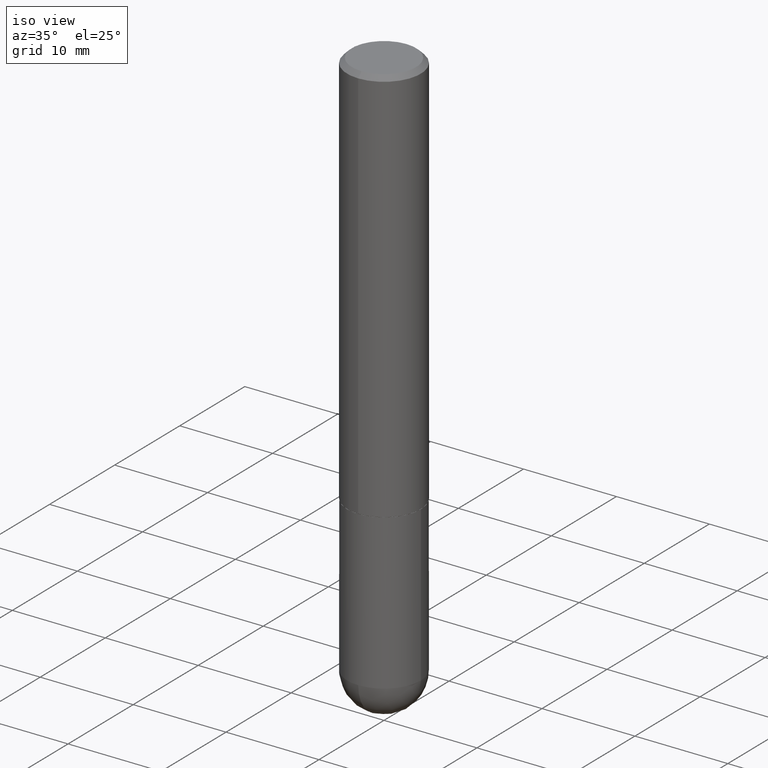
[diagram: clean part render]
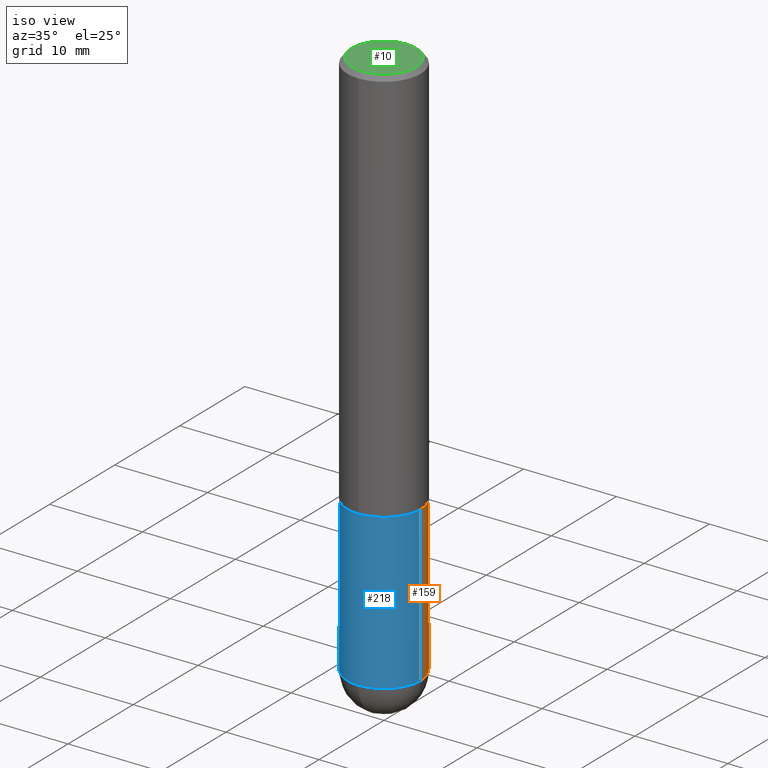
[diagram: same view with three faces highlighted in distinct colors, each labeled with its STEP entity id]
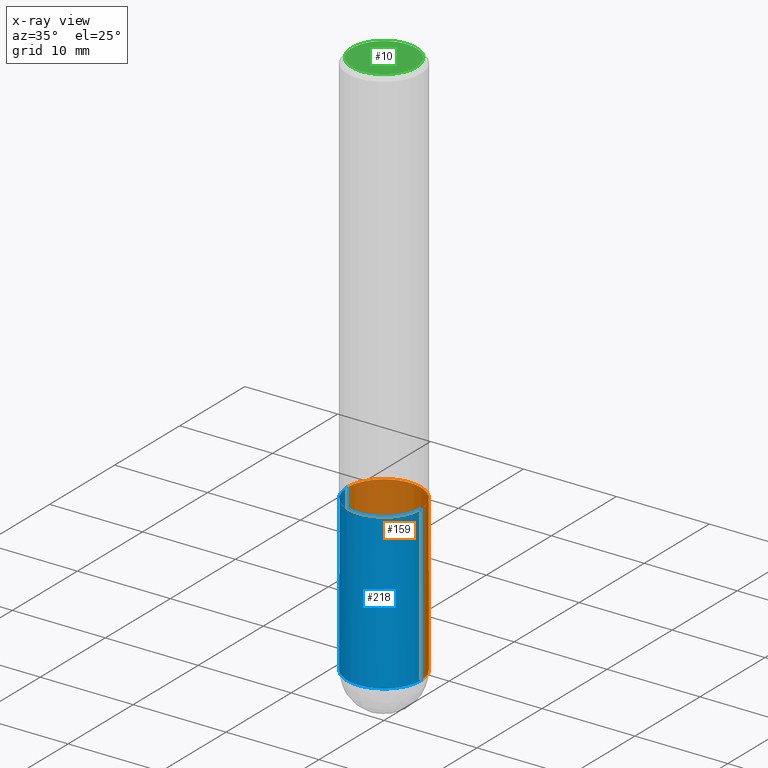
[diagram: x-ray of the same camera — body ghosted, the three highlighted faces saturated]
A machine part, iso view with three faces highlighted in distinct colors.
The next image is the same camera in x-ray (body ghosted, the three faces saturated) — at least one of them is partly hidden behind the body in this view.
Their STEP definitions:

[orange] entity #159 — the highlighted cylindrical surface (partial cylindrical patch) has radius 3.9688 mm, axis along (-0, 0, 1).
#4 = VERTEX_POINT ( 'NONE', #388 ) ;
#9 = CARTESIAN_POINT ( 'NONE',  ( 5.731567514496413899E-29, -8.183159387913622595E-15, -2.343750000000000000 ) ) ;
#11 = AXIS2_PLACEMENT_3D ( 'NONE', #37, #156, #62 ) ;
#20 = CARTESIAN_POINT ( 'NONE',  ( 0.1562500000000000000, -6.984708418355709513E-15, -1.688000000000000167 ) ) ;
#27 = EDGE_LOOP ( 'NONE', ( #113, #44, #112, #203, #403 ) ) ;
#30 = EDGE_CURVE ( 'NONE', #168, #4, #142, .T. ) ;
#37 = CARTESIAN_POINT ( 'NONE',  ( 0.000000000000000000, 0.000000000000000000, 0.000000000000000000 ) ) ;
#39 = CARTESIAN_POINT ( 'NONE',  ( 0.1562500000000000000, -1.091087918388479174E-15, 7.619026212181150377E-30 ) ) ;
#42 = VERTEX_POINT ( 'NONE', #410 ) ;
#44 = ORIENTED_EDGE ( 'NONE', *, *, #30, .T. ) ;
#62 = DIRECTION ( 'NONE',  ( 1.000000000000000000, -6.982962677686266711E-15, 4.876176775795936353E-29 ) ) ;
#72 = AXIS2_PLACEMENT_3D ( 'NONE', #350, #189, #222 ) ;
#79 = DIRECTION ( 'NONE',  ( -2.445468806185136877E-29, 3.491481338843145188E-15, 1.000000000000000000 ) ) ;
#83 = CIRCLE ( 'NONE', #72, 0.1562500000000000000 ) ;
#88 = DIRECTION ( 'NONE',  ( -2.445468806185136597E-29, 3.491481338843145583E-15, 1.000000000000000000 ) ) ;
#101 = DIRECTION ( 'NONE',  ( -2.445468806185136877E-29, 3.491481338843145188E-15, 1.000000000000000000 ) ) ;
#106 = DIRECTION ( 'NONE',  ( 1.000000000000000000, -6.982962677686262766E-15, 0.000000000000000000 ) ) ;
#112 = ORIENTED_EDGE ( 'NONE', *, *, #171, .F. ) ;
#113 = ORIENTED_EDGE ( 'NONE', *, *, #223, .T. ) ;
#115 = FACE_OUTER_BOUND ( 'NONE', #27, .T. ) ;
#140 = EDGE_CURVE ( 'NONE', #151, #290, #359, .T. ) ;
#142 = LINE ( 'NONE', #400, #366 ) ;
#151 = VERTEX_POINT ( 'NONE', #321 ) ;
#156 = DIRECTION ( 'NONE',  ( -2.445468806185136597E-29, 3.491481338843145583E-15, 1.000000000000000000 ) ) ;
#159 = ADVANCED_FACE ( 'NONE', ( #115 ), #252, .T. ) ;
#168 = VERTEX_POINT ( 'NONE', #262 ) ;
#171 = EDGE_CURVE ( 'NONE', #290, #4, #83, .T. ) ;
#185 = AXIS2_PLACEMENT_3D ( 'NONE', #232, #363, #106 ) ;
#189 = DIRECTION ( 'NONE',  ( -2.445468806185136597E-29, 3.491481338843145583E-15, 1.000000000000000000 ) ) ;
#203 = ORIENTED_EDGE ( 'NONE', *, *, #140, .F. ) ;
#207 = AXIS2_PLACEMENT_3D ( 'NONE', #9, #88, #299 ) ;
#215 = CIRCLE ( 'NONE', #207, 0.1562500000000000000 ) ;
#222 = DIRECTION ( 'NONE',  ( 1.000000000000000000, -6.982962677686269077E-15, 0.000000000000000000 ) ) ;
#223 = EDGE_CURVE ( 'NONE', #42, #168, #215, .T. ) ;
#232 = CARTESIAN_POINT ( 'NONE',  ( 5.731567514496413899E-29, -8.183159387913622595E-15, -2.343750000000000000 ) ) ;
#252 = CYLINDRICAL_SURFACE ( 'NONE', #11, 0.1562500000000000000 ) ;
#262 = CARTESIAN_POINT ( 'NONE',  ( -0.1562500000000000000, -5.928166919315270321E-15, -2.343750000000000000 ) ) ;
#268 = VECTOR ( 'NONE', #101, 39.37007874015748143 ) ;
#290 = VERTEX_POINT ( 'NONE', #20 ) ;
#299 = DIRECTION ( 'NONE',  ( 1.000000000000000000, -6.982962677686262766E-15, 0.000000000000000000 ) ) ;
#321 = CARTESIAN_POINT ( 'NONE',  ( 0.1562500000000000000, -8.129477862328905246E-15, -2.343750000000000000 ) ) ;
#325 = EDGE_CURVE ( 'NONE', #151, #42, #372, .T. ) ;
#350 = CARTESIAN_POINT ( 'NONE',  ( 4.127951344840510809E-29, -5.893620499967230340E-15, -1.688000000000000167 ) ) ;
#359 = LINE ( 'NONE', #39, #268 ) ;
#363 = DIRECTION ( 'NONE',  ( -2.445468806185136597E-29, 3.491481338843145583E-15, 1.000000000000000000 ) ) ;
#366 = VECTOR ( 'NONE', #79, 39.37007874015748143 ) ;
#372 = CIRCLE ( 'NONE', #185, 0.1562500000000000000 ) ;
#388 = CARTESIAN_POINT ( 'NONE',  ( -0.1562500000000000000, -5.928166919315269532E-15, -1.688000000000000167 ) ) ;
#400 = CARTESIAN_POINT ( 'NONE',  ( -0.1562500000000000000, 1.110223024625156540E-15, -7.685836078523291160E-30 ) ) ;
#403 = ORIENTED_EDGE ( 'NONE', *, *, #325, .T. ) ;
#410 = CARTESIAN_POINT ( 'NONE',  ( 1.091087918388535577E-15, 0.1562499999999916733, -2.343750000000000444 ) ) ;

[blue] entity #218 — the highlighted cylindrical surface (partial cylindrical patch) has radius 3.9688 mm, axis along (-0, 0, 1).
#4 = VERTEX_POINT ( 'NONE', #388 ) ;
#20 = CARTESIAN_POINT ( 'NONE',  ( 0.1562500000000000000, -6.984708418355709513E-15, -1.688000000000000167 ) ) ;
#30 = EDGE_CURVE ( 'NONE', #168, #4, #142, .T. ) ;
#39 = CARTESIAN_POINT ( 'NONE',  ( 0.1562500000000000000, -1.091087918388479174E-15, 7.619026212181150377E-30 ) ) ;
#40 = CARTESIAN_POINT ( 'NONE',  ( 4.127951344840510809E-29, -5.893620499967230340E-15, -1.688000000000000167 ) ) ;
#74 = CARTESIAN_POINT ( 'NONE',  ( -1.110223024625101517E-15, -0.1562500000000085487, -2.343749999999999556 ) ) ;
#79 = DIRECTION ( 'NONE',  ( -2.445468806185136877E-29, 3.491481338843145188E-15, 1.000000000000000000 ) ) ;
#96 = FACE_OUTER_BOUND ( 'NONE', #369, .T. ) ;
#101 = DIRECTION ( 'NONE',  ( -2.445468806185136877E-29, 3.491481338843145188E-15, 1.000000000000000000 ) ) ;
#119 = CIRCLE ( 'NONE', #357, 0.1562500000000000000 ) ;
#127 = EDGE_CURVE ( 'NONE', #317, #151, #236, .T. ) ;
#140 = EDGE_CURVE ( 'NONE', #151, #290, #359, .T. ) ;
#142 = LINE ( 'NONE', #400, #366 ) ;
#151 = VERTEX_POINT ( 'NONE', #321 ) ;
#154 = DIRECTION ( 'NONE',  ( 1.000000000000000000, -6.982962677686266711E-15, 4.876176775795936353E-29 ) ) ;
#155 = AXIS2_PLACEMENT_3D ( 'NONE', #40, #229, #309 ) ;
#165 = CARTESIAN_POINT ( 'NONE',  ( 5.731567514496413899E-29, -8.183159387913622595E-15, -2.343750000000000000 ) ) ;
#168 = VERTEX_POINT ( 'NONE', #262 ) ;
#172 = ORIENTED_EDGE ( 'NONE', *, *, #300, .F. ) ;
#186 = CARTESIAN_POINT ( 'NONE',  ( 0.000000000000000000, 0.000000000000000000, 0.000000000000000000 ) ) ;
#187 = DIRECTION ( 'NONE',  ( -2.445468806185136597E-29, 3.491481338843145583E-15, 1.000000000000000000 ) ) ;
#188 = AXIS2_PLACEMENT_3D ( 'NONE', #165, #286, #328 ) ;
#193 = DIRECTION ( 'NONE',  ( 1.000000000000000000, -6.982962677686262766E-15, 0.000000000000000000 ) ) ;
#218 = ADVANCED_FACE ( 'NONE', ( #96 ), #331, .T. ) ;
#228 = CIRCLE ( 'NONE', #155, 0.1562500000000000000 ) ;
#229 = DIRECTION ( 'NONE',  ( -2.445468806185136597E-29, 3.491481338843145583E-15, 1.000000000000000000 ) ) ;
#236 = CIRCLE ( 'NONE', #188, 0.1562500000000000000 ) ;
#262 = CARTESIAN_POINT ( 'NONE',  ( -0.1562500000000000000, -5.928166919315270321E-15, -2.343750000000000000 ) ) ;
#268 = VECTOR ( 'NONE', #101, 39.37007874015748143 ) ;
#269 = DIRECTION ( 'NONE',  ( -2.445468806185136597E-29, 3.491481338843145583E-15, 1.000000000000000000 ) ) ;
#286 = DIRECTION ( 'NONE',  ( -2.445468806185136597E-29, 3.491481338843145583E-15, 1.000000000000000000 ) ) ;
#290 = VERTEX_POINT ( 'NONE', #20 ) ;
#300 = EDGE_CURVE ( 'NONE', #4, #290, #228, .T. ) ;
#309 = DIRECTION ( 'NONE',  ( 1.000000000000000000, -6.982962677686269077E-15, 0.000000000000000000 ) ) ;
#312 = ORIENTED_EDGE ( 'NONE', *, *, #30, .F. ) ;
#317 = VERTEX_POINT ( 'NONE', #74 ) ;
#321 = CARTESIAN_POINT ( 'NONE',  ( 0.1562500000000000000, -8.129477862328905246E-15, -2.343750000000000000 ) ) ;
#326 = EDGE_CURVE ( 'NONE', #168, #317, #119, .T. ) ;
#328 = DIRECTION ( 'NONE',  ( 1.000000000000000000, -6.982962677686262766E-15, 0.000000000000000000 ) ) ;
#331 = CYLINDRICAL_SURFACE ( 'NONE', #367, 0.1562500000000000000 ) ;
#341 = ORIENTED_EDGE ( 'NONE', *, *, #140, .T. ) ;
#357 = AXIS2_PLACEMENT_3D ( 'NONE', #365, #269, #193 ) ;
#359 = LINE ( 'NONE', #39, #268 ) ;
#365 = CARTESIAN_POINT ( 'NONE',  ( 5.731567514496413899E-29, -8.183159387913622595E-15, -2.343750000000000000 ) ) ;
#366 = VECTOR ( 'NONE', #79, 39.37007874015748143 ) ;
#367 = AXIS2_PLACEMENT_3D ( 'NONE', #186, #187, #154 ) ;
#369 = EDGE_LOOP ( 'NONE', ( #312, #408, #401, #341, #172 ) ) ;
#388 = CARTESIAN_POINT ( 'NONE',  ( -0.1562500000000000000, -5.928166919315269532E-15, -1.688000000000000167 ) ) ;
#400 = CARTESIAN_POINT ( 'NONE',  ( -0.1562500000000000000, 1.110223024625156540E-15, -7.685836078523291160E-30 ) ) ;
#401 = ORIENTED_EDGE ( 'NONE', *, *, #127, .T. ) ;
#408 = ORIENTED_EDGE ( 'NONE', *, *, #326, .T. ) ;

[green] entity #10 — the highlighted planar face has unit normal (0, -0, -1).
#7 = DIRECTION ( 'NONE',  ( -2.445372692446252269E-29, 3.491618979187682229E-15, 1.000000000000000000 ) ) ;
#10 = ADVANCED_FACE ( 'NONE', ( #200 ), #192, .F. ) ;
#15 = CARTESIAN_POINT ( 'NONE',  ( 9.514286648347543521E-16, 0.1362500000000000933, -4.842607341460512364E-16 ) ) ;
#38 = DIRECTION ( 'NONE',  ( 2.445372692446251989E-29, -3.491618979187682229E-15, -1.000000000000000000 ) ) ;
#54 = CIRCLE ( 'NONE', #163, 0.1362500000000000933 ) ;
#59 = DIRECTION ( 'NONE',  ( -6.982962677686265922E-15, -1.000000000000000000, 3.491618979187682229E-15 ) ) ;
#70 = DIRECTION ( 'NONE',  ( 6.982962677686265922E-15, 1.000000000000000000, -3.491618979187682229E-15 ) ) ;
#105 = DIRECTION ( 'NONE',  ( -2.445372692446252269E-29, 3.491618979187682229E-15, 1.000000000000000000 ) ) ;
#109 = ORIENTED_EDGE ( 'NONE', *, *, #148, .T. ) ;
#126 = DIRECTION ( 'NONE',  ( -6.982962677686265922E-15, -1.000000000000000000, 3.491618979187682229E-15 ) ) ;
#148 = EDGE_CURVE ( 'NONE', #169, #337, #199, .T. ) ;
#157 = AXIS2_PLACEMENT_3D ( 'NONE', #333, #105, #59 ) ;
#163 = AXIS2_PLACEMENT_3D ( 'NONE', #255, #7, #126 ) ;
#169 = VERTEX_POINT ( 'NONE', #391 ) ;
#182 = EDGE_CURVE ( 'NONE', #337, #169, #54, .T. ) ;
#192 = PLANE ( 'NONE',  #197 ) ;
#197 = AXIS2_PLACEMENT_3D ( 'NONE', #15, #38, #70 ) ;
#199 = CIRCLE ( 'NONE', #157, 0.1362500000000000933 ) ;
#200 = FACE_OUTER_BOUND ( 'NONE', #411, .T. ) ;
#255 = CARTESIAN_POINT ( 'NONE',  ( 4.170655623331656744E-46, -5.955059682748427173E-32, -1.705529646345850364E-17 ) ) ;
#332 = CARTESIAN_POINT ( 'NONE',  ( -1.003347832174086672E-15, -0.1362500000000000933, 4.586777894508634656E-16 ) ) ;
#333 = CARTESIAN_POINT ( 'NONE',  ( 4.170655623331656744E-46, -5.955059682748427173E-32, -1.705529646345850364E-17 ) ) ;
#337 = VERTEX_POINT ( 'NONE', #332 ) ;
#343 = ORIENTED_EDGE ( 'NONE', *, *, #182, .T. ) ;
#391 = CARTESIAN_POINT ( 'NONE',  ( 1.021258291611617059E-15, 0.1362500000000000933, -4.927883823777805591E-16 ) ) ;
#411 = EDGE_LOOP ( 'NONE', ( #109, #343 ) ) ;